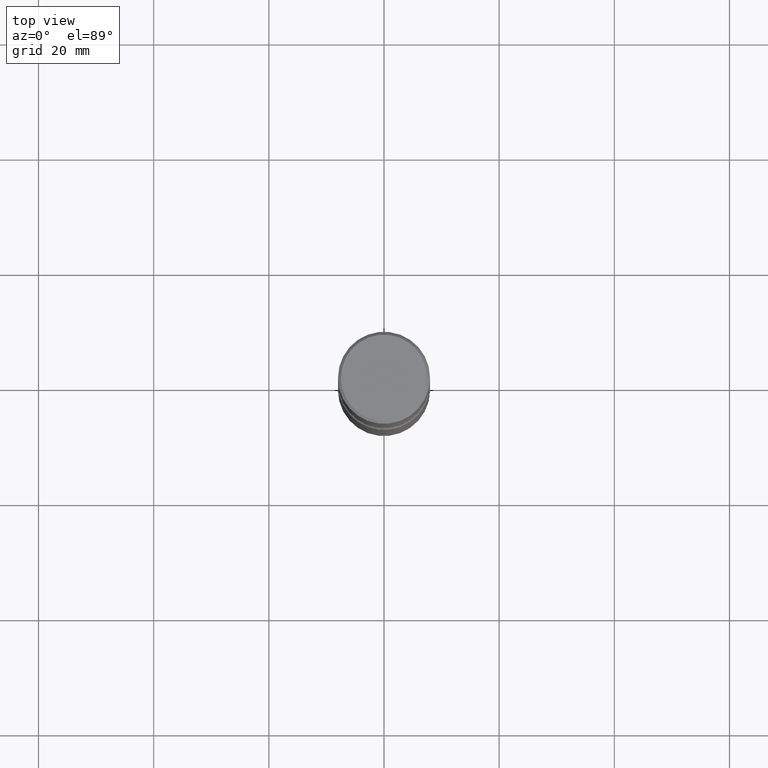
[diagram: clean part render]
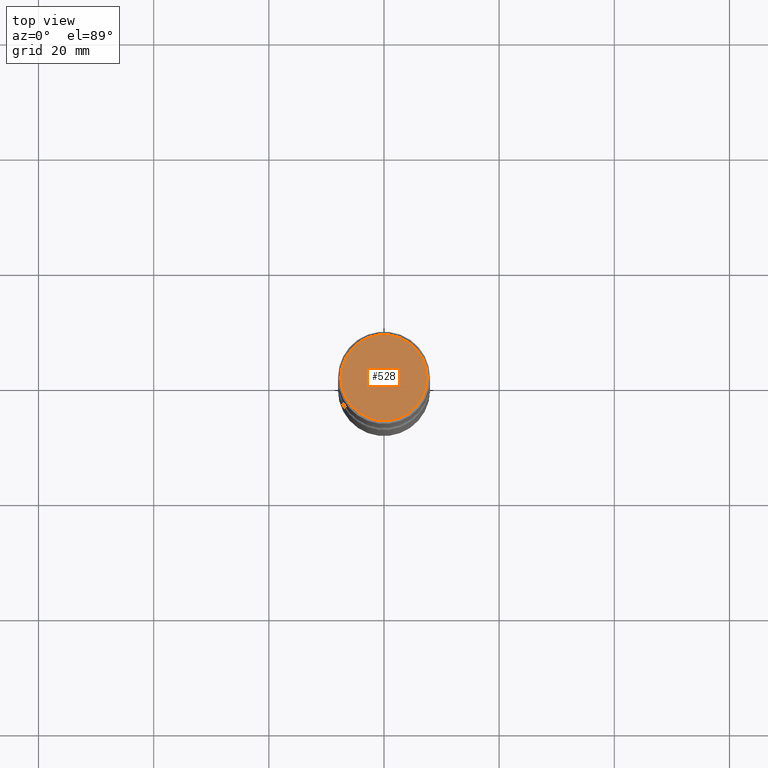
[diagram: same view with one face highlighted and labeled with its STEP entity id]
A machine part, top view. The second image highlights one B-rep face of the part: STEP entity #528.
In plain terms, the highlighted planar face has unit normal (0, -0, -1).
Its self-contained STEP definition (entity closure, byte-faithful):
#1 = AXIS2_PLACEMENT_3D ( 'NONE', #361, #317, #101 ) ;
#10 = VERTEX_POINT ( 'NONE', #342 ) ;
#12 = PLANE ( 'NONE',  #1 ) ;
#101 = DIRECTION ( 'NONE',  ( -1.000000000000000000, 6.982962677686265922E-15, -4.876176775795935793E-29 ) ) ;
#104 = EDGE_LOOP ( 'NONE', ( #209, #257 ) ) ;
#111 = FACE_OUTER_BOUND ( 'NONE', #104, .T. ) ;
#116 = DIRECTION ( 'NONE',  ( -2.445468806185136597E-29, 3.491481338843145583E-15, 1.000000000000000000 ) ) ;
#143 = CARTESIAN_POINT ( 'NONE',  ( -3.131554243005663153E-46, 4.471029511141347348E-32, 1.280553747030124924E-17 ) ) ;
#209 = ORIENTED_EDGE ( 'NONE', *, *, #234, .T. ) ;
#234 = EDGE_CURVE ( 'NONE', #10, #399, #333, .T. ) ;
#257 = ORIENTED_EDGE ( 'NONE', *, *, #415, .T. ) ;
#265 = DIRECTION ( 'NONE',  ( 1.000000000000000000, -6.982962677686267499E-15, 4.876053491004732105E-29 ) ) ;
#276 = AXIS2_PLACEMENT_3D ( 'NONE', #143, #116, #533 ) ;
#296 = DIRECTION ( 'NONE',  ( -2.445468806185136597E-29, 3.491481338843145583E-15, 1.000000000000000000 ) ) ;
#317 = DIRECTION ( 'NONE',  ( 2.438088387897960049E-29, -3.491481338843145188E-15, -1.000000000000000000 ) ) ;
#333 = CIRCLE ( 'NONE', #355, 0.2949500000000001565 ) ;
#342 = CARTESIAN_POINT ( 'NONE',  ( -0.2949500000000001565, 2.094539655171996896E-15, 1.280553747028672311E-17 ) ) ;
#355 = AXIS2_PLACEMENT_3D ( 'NONE', #513, #296, #265 ) ;
#361 = CARTESIAN_POINT ( 'NONE',  ( 2.059624841783565247E-15, 0.2949500000000001565, -1.023409652156635730E-15 ) ) ;
#389 = CIRCLE ( 'NONE', #276, 0.2949500000000001565 ) ;
#399 = VERTEX_POINT ( 'NONE', #549 ) ;
#415 = EDGE_CURVE ( 'NONE', #399, #10, #389, .T. ) ;
#513 = CARTESIAN_POINT ( 'NONE',  ( -3.131554243005663153E-46, 4.471029511141347348E-32, 1.280553747030124924E-17 ) ) ;
#528 = ADVANCED_FACE ( 'NONE', ( #111 ), #12, .F. ) ;
#533 = DIRECTION ( 'NONE',  ( 1.000000000000000000, -6.982962677686267499E-15, 4.876053491004732105E-29 ) ) ;
#549 = CARTESIAN_POINT ( 'NONE',  ( 0.2949500000000001565, -2.127023677808861258E-15, 1.280553747031588939E-17 ) ) ;